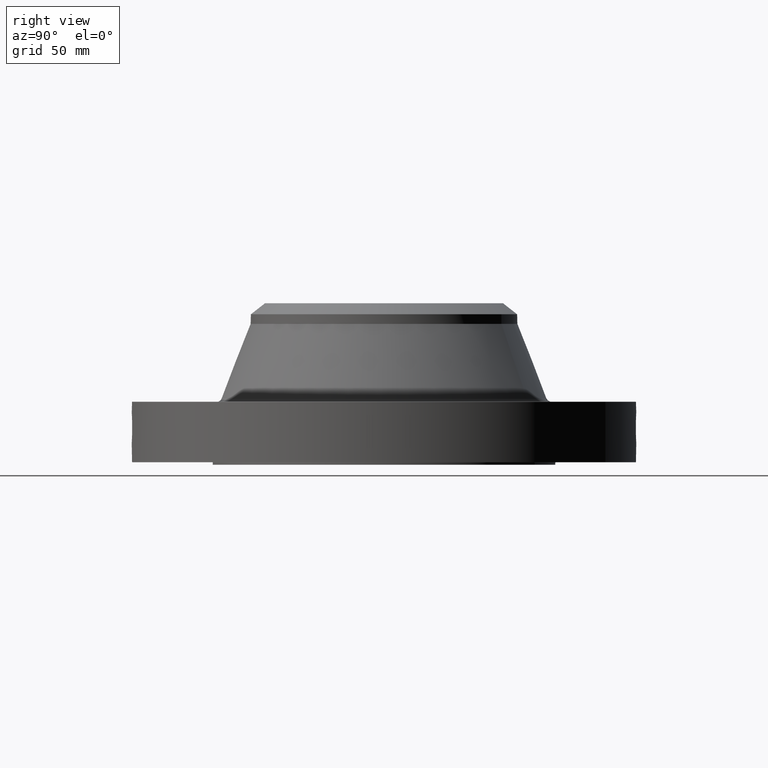
[diagram: clean part render]
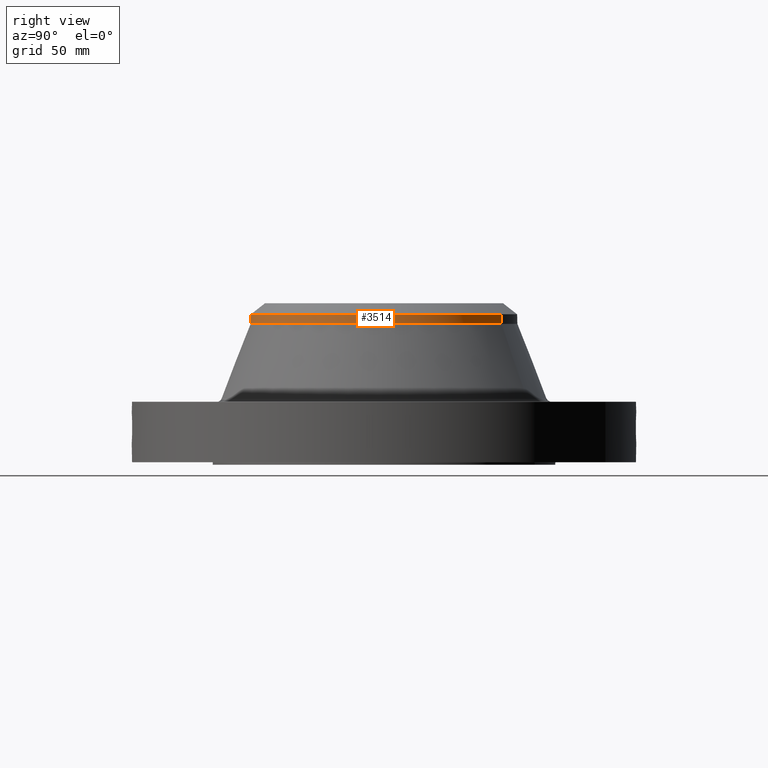
[diagram: same view with one face highlighted and labeled with its STEP entity id]
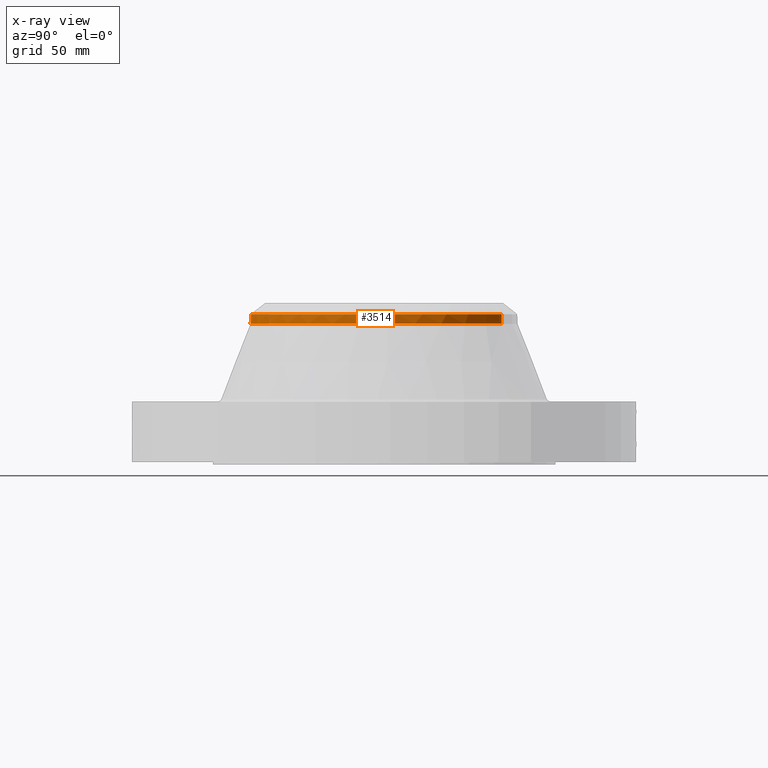
[diagram: x-ray of the same camera — body ghosted, the highlighted face saturated]
A machine part, right view. The second image highlights one B-rep face of the part: STEP entity #3514.
The next image is the same camera in x-ray: the body ghosted, the highlighted face saturated — about 0% of this face is hidden behind the body in this view.
In plain terms, the highlighted cylindrical surface (partial cylindrical patch) has radius 84.201 mm, axis along (0, 0, -1).
Its self-contained STEP definition (entity closure, byte-faithful):
#2703=AXIS2_PLACEMENT_3D('Circle Axis2P3D',#2701,#2702,$) ;
#3479=AXIS2_PLACEMENT_3D('Cylinder Axis2P3D',#3476,#3477,#3478) ;
#3497=AXIS2_PLACEMENT_3D('Circle Axis2P3D',#3495,#3496,$) ;
#3504=AXIS2_PLACEMENT_3D('Circle Axis2P3D',#3502,#3503,$) ;
#2698=CARTESIAN_POINT('Vertex',(1.58929566048,2.90918619268,3.49079539917)) ;
#2701=CARTESIAN_POINT('Axis2P3D Location',(0.,0.,3.49079539917)) ;
#2705=CARTESIAN_POINT('Vertex',(-1.58929566048,-2.90918619268,3.49079539917)) ;
#3476=CARTESIAN_POINT('Axis2P3D Location',(0.,0.,2.00000000001)) ;
#3481=CARTESIAN_POINT('Line Origine',(-1.58929566048,-2.90918619268,3.60890563539)) ;
#3485=CARTESIAN_POINT('Vertex',(-1.58929566048,-2.90918619268,3.72701587161)) ;
#3488=CARTESIAN_POINT('Line Origine',(1.58929566048,2.90918619268,3.60890563539)) ;
#3492=CARTESIAN_POINT('Vertex',(1.58929566048,2.90918619268,3.72701587161)) ;
#3495=CARTESIAN_POINT('Axis2P3D Location',(0.,0.,3.72701587161)) ;
#3499=CARTESIAN_POINT('Vertex',(1.58929566048,-2.90918619268,3.72701587161)) ;
#3502=CARTESIAN_POINT('Axis2P3D Location',(0.,0.,3.72701587161)) ;
#2702=DIRECTION('Axis2P3D Direction',(0.,0.,-0.0393700787402)) ;
#3477=DIRECTION('Axis2P3D Direction',(0.,0.,-0.0393700787402)) ;
#3478=DIRECTION('Axis2P3D XDirection',(-0.0188750212049,-0.0345504945626,0.)) ;
#3482=DIRECTION('Vector Direction',(0.,0.,-0.0393700787402)) ;
#3489=DIRECTION('Vector Direction',(0.,0.,-0.0393700787402)) ;
#3496=DIRECTION('Axis2P3D Direction',(0.,0.,-0.0393700787402)) ;
#3503=DIRECTION('Axis2P3D Direction',(0.,0.,-0.0393700787402)) ;
#3483=VECTOR('Line Direction',#3482,0.0393700787402) ;
#3490=VECTOR('Line Direction',#3489,0.0393700787402) ;
#3508=ORIENTED_EDGE('',*,*,#3487,.F.) ;
#3509=ORIENTED_EDGE('',*,*,#2707,.F.) ;
#3510=ORIENTED_EDGE('',*,*,#3494,.T.) ;
#3511=ORIENTED_EDGE('',*,*,#3501,.F.) ;
#3512=ORIENTED_EDGE('',*,*,#3506,.T.) ;
#3514=ADVANCED_FACE('PartBody',(#3513),#3480,.T.) ;
#2704=CIRCLE('generated circle',#2703,3.31500000001) ;
#3498=CIRCLE('generated circle',#3497,3.31500000001) ;
#3505=CIRCLE('generated circle',#3504,3.31500000001) ;
#3480=CYLINDRICAL_SURFACE('generated cylinder',#3479,3.31500000001) ;
#2707=EDGE_CURVE('',#2699,#2706,#2704,.T.) ;
#3487=EDGE_CURVE('',#2706,#3486,#3484,.F.) ;
#3494=EDGE_CURVE('',#2699,#3493,#3491,.F.) ;
#3501=EDGE_CURVE('',#3500,#3493,#3498,.F.) ;
#3506=EDGE_CURVE('',#3500,#3486,#3505,.T.) ;
#3507=EDGE_LOOP('',(#3508,#3509,#3510,#3511,#3512)) ;
#3513=FACE_OUTER_BOUND('',#3507,.T.) ;
#3484=LINE('Line',#3481,#3483) ;
#3491=LINE('Line',#3488,#3490) ;
#2699=VERTEX_POINT('',#2698) ;
#2706=VERTEX_POINT('',#2705) ;
#3486=VERTEX_POINT('',#3485) ;
#3493=VERTEX_POINT('',#3492) ;
#3500=VERTEX_POINT('',#3499) ;